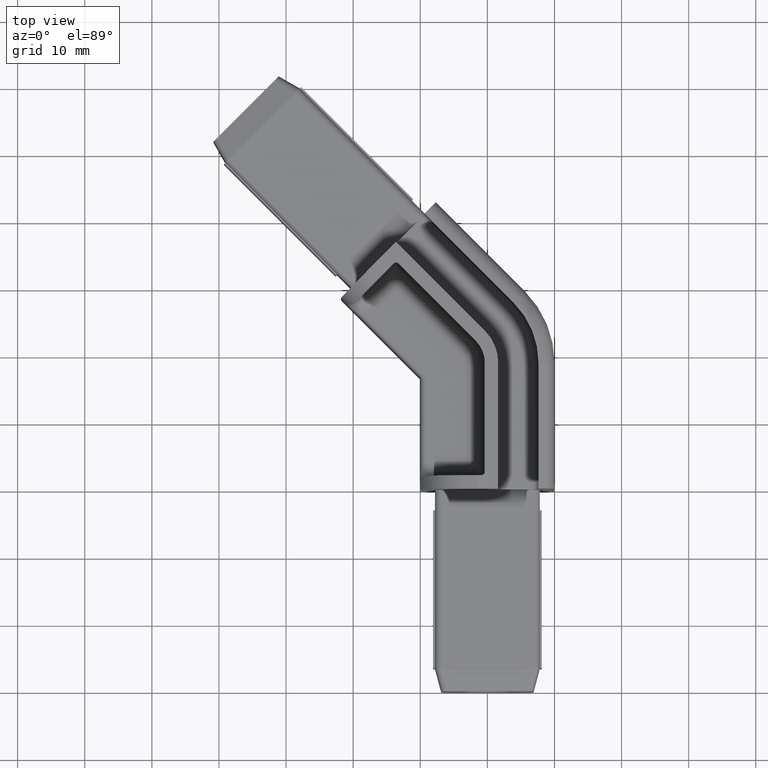
[diagram: clean part render]
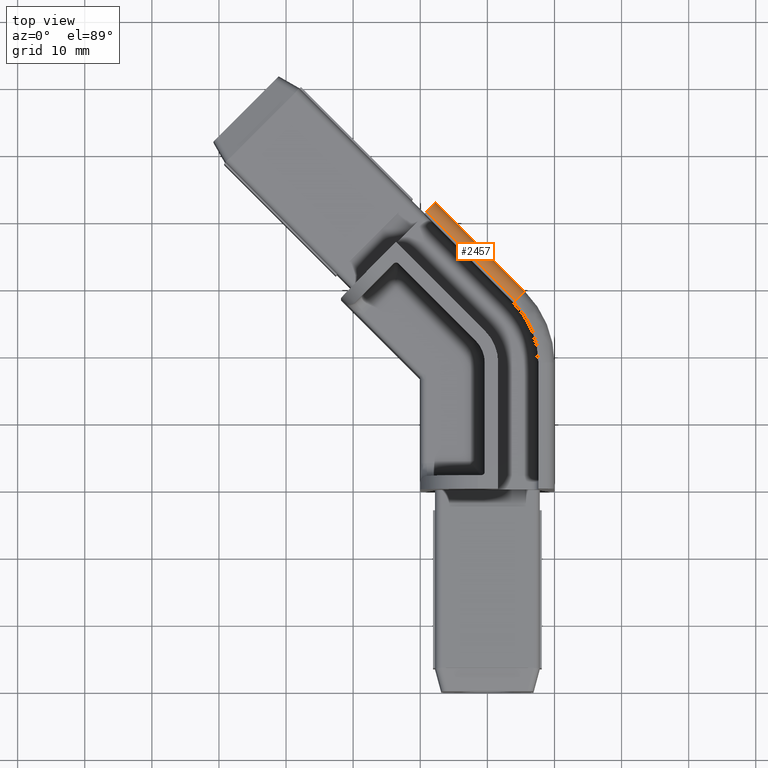
[diagram: same view with one face highlighted and labeled with its STEP entity id]
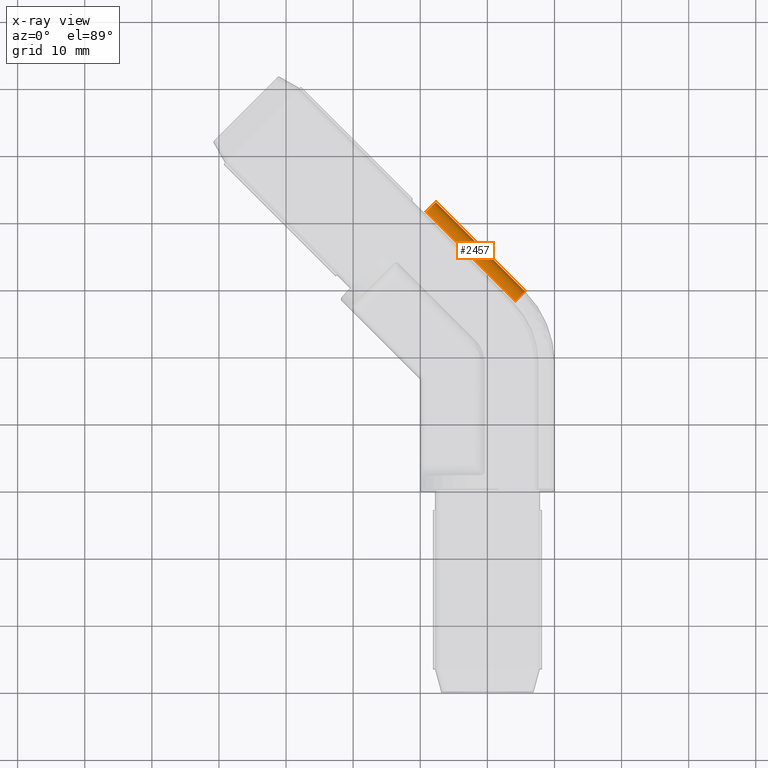
[diagram: x-ray of the same camera — body ghosted, the highlighted face saturated]
A machine part, top view. The second image highlights one B-rep face of the part: STEP entity #2457.
The next image is the same camera in x-ray: the body ghosted, the highlighted face saturated — about 0% of this face is hidden behind the body in this view.
In plain terms, the highlighted cylindrical surface (edge-blend (fillet) strip) has radius 2 mm, axis along (-0.7071, 0.7071, -0).
Its self-contained STEP definition (entity closure, byte-faithful):
#2416=CARTESIAN_POINT('',(4.192388155425304,57.963455967291921,17.999999999999687));
#2417=DIRECTION('',(-0.707106781186548,0.707106781186548,-8.659561E-017));
#2418=DIRECTION('',(-1.224647E-016,0.0,1.0));
#2419=AXIS2_PLACEMENT_3D('',#2416,#2417,#2418);
#2420=CYLINDRICAL_SURFACE('',#2419,2.0);
#2421=CARTESIAN_POINT('',(4.192388155425303,57.963455967291893,19.999999999999687));
#2422=VERTEX_POINT('',#2421);
#2423=CARTESIAN_POINT('',(5.606601717798410,59.377669529664971,17.999999999999687));
#2424=VERTEX_POINT('',#2423);
#2425=CARTESIAN_POINT('',(4.192388155425306,57.963455967291921,17.999999999999687));
#2426=DIRECTION('',(-0.707106781186548,0.707106781186548,-8.659561E-017));
#2427=DIRECTION('',(-1.224647E-016,0.0,1.0));
#2428=AXIS2_PLACEMENT_3D('',#2425,#2426,#2427);
#2429=CIRCLE('',#2428,2.0);
#2430=EDGE_CURVE('',#2422,#2424,#2429,.T.);
#2431=ORIENTED_EDGE('',*,*,#2430,.T.);
#2432=CARTESIAN_POINT('',(-7.677669529663492,72.661940777126929,17.999999999999687));
#2433=VERTEX_POINT('',#2432);
#2434=CARTESIAN_POINT('',(5.606601717798410,59.377669529665027,17.999999999999687));
#2435=DIRECTION('',(-0.707106781186548,0.707106781186547,0.0));
#2436=VECTOR('',#2435,18.786796564403577);
#2437=LINE('',#2434,#2436);
#2438=EDGE_CURVE('',#2424,#2433,#2437,.T.);
#2439=ORIENTED_EDGE('',*,*,#2438,.T.);
#2440=CARTESIAN_POINT('',(-9.091883092036598,71.247727214753823,19.999999999999687));
#2441=VERTEX_POINT('',#2440);
#2442=CARTESIAN_POINT('',(-9.091883092036376,71.247727214753724,17.999999999999687));
#2443=DIRECTION('',(-0.707106781186548,0.707106781186548,-8.659561E-017));
#2444=DIRECTION('',(-1.224647E-016,0.0,1.0));
#2445=AXIS2_PLACEMENT_3D('',#2442,#2443,#2444);
#2446=CIRCLE('',#2445,2.0);
#2447=EDGE_CURVE('',#2441,#2433,#2446,.T.);
#2448=ORIENTED_EDGE('',*,*,#2447,.F.);
#2449=CARTESIAN_POINT('',(4.192388155425303,57.963455967291921,19.999999999999687));
#2450=DIRECTION('',(-0.707106781186547,0.707106781186547,0.0));
#2451=VECTOR('',#2450,18.786796564403577);
#2452=LINE('',#2449,#2451);
#2453=EDGE_CURVE('',#2422,#2441,#2452,.T.);
#2454=ORIENTED_EDGE('',*,*,#2453,.F.);
#2455=EDGE_LOOP('',(#2431,#2439,#2448,#2454));
#2456=FACE_OUTER_BOUND('',#2455,.T.);
#2457=ADVANCED_FACE('',(#2456),#2420,.T.);